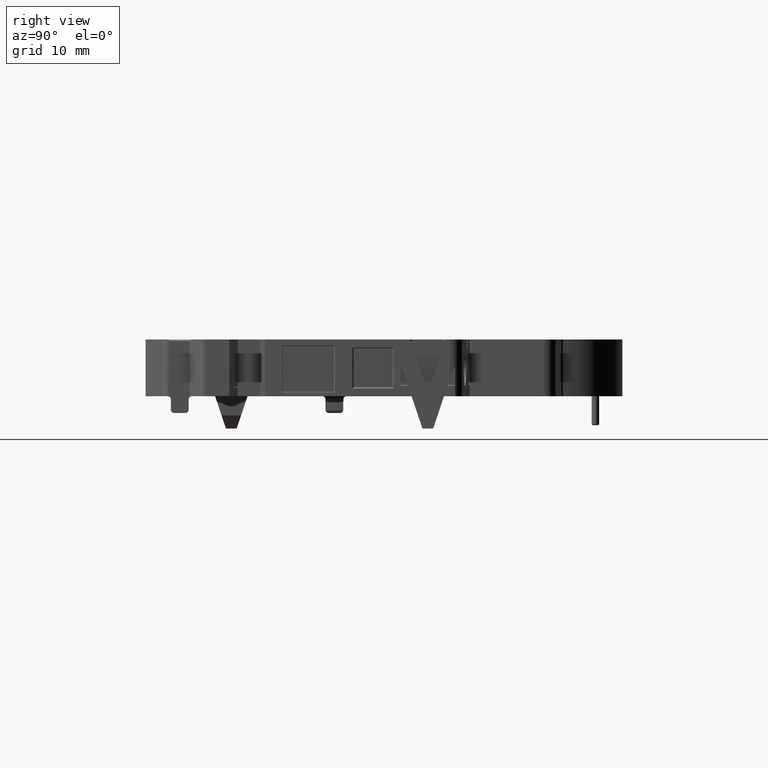
[diagram: clean part render]
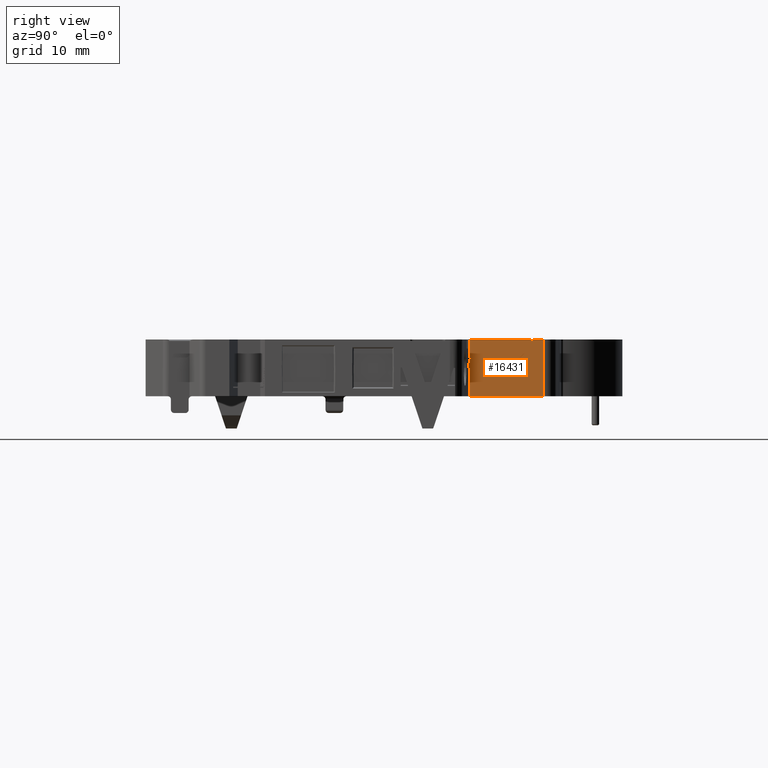
[diagram: same view with one face highlighted and labeled with its STEP entity id]
A machine part, right view. The second image highlights one B-rep face of the part: STEP entity #16431.
In plain terms, the highlighted planar face has unit normal (1, 0, 0).
Its self-contained STEP definition (entity closure, byte-faithful):
#712=DIRECTION('',(0.E0,1.E0,0.E0));
#713=VECTOR('',#712,1.143590327820E1);
#714=CARTESIAN_POINT('',(2.25E1,4.35E1,-4.4E0));
#715=LINE('',#714,#713);
#2384=DIRECTION('',(0.E0,-1.E0,0.E0));
#2385=VECTOR('',#2384,9.5E0);
#2386=CARTESIAN_POINT('',(2.25E1,5.3E1,4.4E0));
#2387=LINE('',#2386,#2385);
#4449=DIRECTION('',(0.E0,-1.E0,0.E0));
#4450=VECTOR('',#4449,9.999999999999E-2);
#4451=CARTESIAN_POINT('',(2.25E1,4.36E1,1.6E0));
#4452=LINE('',#4451,#4450);
#4461=DIRECTION('',(0.E0,-2.425356250363E-1,-9.701425001453E-1));
#4462=VECTOR('',#4461,1.649242250247E0);
#4463=CARTESIAN_POINT('',(2.25E1,4.36E1,1.6E0));
#4464=LINE('',#4463,#4462);
#4465=DIRECTION('',(0.E0,0.E0,1.E0));
#4466=VECTOR('',#4465,2.8E0);
#4467=CARTESIAN_POINT('',(2.25E1,4.35E1,1.6E0));
#4468=LINE('',#4467,#4466);
#4469=DIRECTION('',(0.E0,0.E0,-1.E0));
#4470=VECTOR('',#4469,1.E0);
#4471=CARTESIAN_POINT('',(2.25E1,5.3E1,4.4E0));
#4472=LINE('',#4471,#4470);
#4473=DIRECTION('',(0.E0,-7.071067811865E-1,-7.071067811865E-1));
#4474=VECTOR('',#4473,2.630246499665E0);
#4475=CARTESIAN_POINT('',(2.25E1,5.325986513611E1,3.459865136105E0));
#4476=LINE('',#4475,#4474);
#4477=DIRECTION('',(0.E0,-8.726535498398E-3,-9.999619230642E-1));
#4478=VECTOR('',#4477,9.401706627128E-1);
#4479=CARTESIAN_POINT('',(2.25E1,5.326806956877E1,4.4E0));
#4480=LINE('',#4479,#4478);
#4481=DIRECTION('',(0.E0,1.E0,0.E0));
#4482=VECTOR('',#4481,1.667833709431E0);
#4483=CARTESIAN_POINT('',(2.25E1,5.326806956877E1,4.4E0));
#4484=LINE('',#4483,#4482);
#4485=DIRECTION('',(0.E0,0.E0,1.E0));
#4486=VECTOR('',#4485,4.4E0);
#4487=CARTESIAN_POINT('',(2.25E1,4.35E1,-4.4E0));
#4488=LINE('',#4487,#4486);
#4489=DIRECTION('',(0.E0,-1.E0,5.893161031505E-14));
#4490=VECTOR('',#4489,3.E-1);
#4491=CARTESIAN_POINT('',(2.25E1,4.35E1,-1.764927180098E-14));
#4492=LINE('',#4491,#4490);
#4493=DIRECTION('',(0.E0,7.071067811865E-1,7.071067811865E-1));
#4494=VECTOR('',#4493,2.545584412272E0);
#4495=CARTESIAN_POINT('',(2.25E1,5.12E1,1.6E0));
#4496=LINE('',#4495,#4494);
#4513=DIRECTION('',(0.E0,1.E0,0.E0));
#4514=VECTOR('',#4513,2.E-1);
#4515=CARTESIAN_POINT('',(2.25E1,5.12E1,1.6E0));
#4516=LINE('',#4515,#4514);
#4586=DIRECTION('',(0.E0,0.E0,-1.E0));
#4587=VECTOR('',#4586,8.8E0);
#4588=CARTESIAN_POINT('',(2.25E1,5.493590327820E1,4.4E0));
#4589=LINE('',#4588,#4587);
#8014=CARTESIAN_POINT('',(2.25E1,4.35E1,-4.4E0));
#8016=VERTEX_POINT('',#8014);
#8073=CARTESIAN_POINT('',(2.25E1,4.35E1,-5.329070518201E-14));
#8075=VERTEX_POINT('',#8073);
#8077=CARTESIAN_POINT('',(2.25E1,4.32E1,0.E0));
#8078=VERTEX_POINT('',#8077);
#8095=CARTESIAN_POINT('',(2.25E1,5.493590327820E1,4.4E0));
#8096=CARTESIAN_POINT('',(2.25E1,5.493590327820E1,-4.4E0));
#8097=VERTEX_POINT('',#8095);
#8098=VERTEX_POINT('',#8096);
#8243=CARTESIAN_POINT('',(2.25E1,5.326806956877E1,4.4E0));
#8244=CARTESIAN_POINT('',(2.25E1,5.325986513611E1,3.459865136105E0));
#8245=VERTEX_POINT('',#8243);
#8246=VERTEX_POINT('',#8244);
#8247=CARTESIAN_POINT('',(2.25E1,5.14E1,1.6E0));
#8248=VERTEX_POINT('',#8247);
#8902=CARTESIAN_POINT('',(2.25E1,4.35E1,4.4E0));
#8904=VERTEX_POINT('',#8902);
#8967=CARTESIAN_POINT('',(2.25E1,5.3E1,4.4E0));
#8969=VERTEX_POINT('',#8967);
#8994=CARTESIAN_POINT('',(2.25E1,4.35E1,1.6E0));
#8995=VERTEX_POINT('',#8994);
#9028=CARTESIAN_POINT('',(2.25E1,5.3E1,3.4E0));
#9029=VERTEX_POINT('',#9028);
#9601=CARTESIAN_POINT('',(2.25E1,5.12E1,1.6E0));
#9603=VERTEX_POINT('',#9601);
#9604=CARTESIAN_POINT('',(2.25E1,4.36E1,1.6E0));
#9606=VERTEX_POINT('',#9604);
#16403=CARTESIAN_POINT('',(2.25E1,4.35E1,-4.4E0));
#16404=DIRECTION('',(1.E0,0.E0,0.E0));
#16405=DIRECTION('',(0.E0,1.E0,0.E0));
#16406=AXIS2_PLACEMENT_3D('',#16403,#16404,#16405);
#16407=PLANE('',#16406);
#16408=ORIENTED_EDGE('',*,*,#16389,.F.);
#16409=ORIENTED_EDGE('',*,*,#16371,.T.);
#16410=ORIENTED_EDGE('',*,*,#16283,.T.);
#16411=ORIENTED_EDGE('',*,*,#13325,.F.);
#16412=ORIENTED_EDGE('',*,*,#10568,.T.);
#16414=ORIENTED_EDGE('',*,*,#16413,.F.);
#16416=ORIENTED_EDGE('',*,*,#16415,.T.);
#16418=ORIENTED_EDGE('',*,*,#16417,.F.);
#16419=ORIENTED_EDGE('',*,*,#10618,.F.);
#16421=ORIENTED_EDGE('',*,*,#16420,.T.);
#16423=ORIENTED_EDGE('',*,*,#16422,.T.);
#16424=ORIENTED_EDGE('',*,*,#10973,.F.);
#16426=ORIENTED_EDGE('',*,*,#16425,.T.);
#16428=ORIENTED_EDGE('',*,*,#16427,.T.);
#16429=EDGE_LOOP('',(#16408,#16409,#16410,#16411,#16412,#16414,#16416,#16418,
#16419,#16421,#16423,#16424,#16426,#16428));
#16430=FACE_OUTER_BOUND('',#16429,.F.);
#16431=ADVANCED_FACE('',(#16430),#16407,.T.);
#10568=EDGE_CURVE('',#8969,#9029,#4472,.T.);
#10618=EDGE_CURVE('',#8245,#8246,#4480,.T.);
#10973=EDGE_CURVE('',#8016,#8098,#715,.T.);
#13325=EDGE_CURVE('',#8969,#8904,#2387,.T.);
#16283=EDGE_CURVE('',#8995,#8904,#4468,.T.);
#16371=EDGE_CURVE('',#9606,#8995,#4452,.T.);
#16389=EDGE_CURVE('',#9606,#8078,#4464,.T.);
#16413=EDGE_CURVE('',#9603,#9029,#4496,.T.);
#16415=EDGE_CURVE('',#9603,#8248,#4516,.T.);
#16417=EDGE_CURVE('',#8246,#8248,#4476,.T.);
#16420=EDGE_CURVE('',#8245,#8097,#4484,.T.);
#16422=EDGE_CURVE('',#8097,#8098,#4589,.T.);
#16425=EDGE_CURVE('',#8016,#8075,#4488,.T.);
#16427=EDGE_CURVE('',#8075,#8078,#4492,.T.);